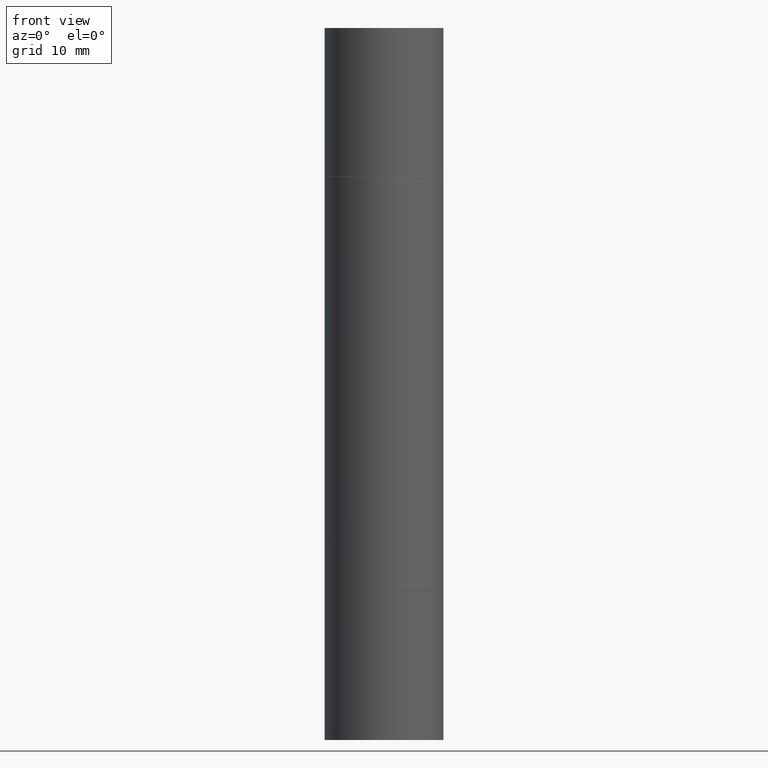
[diagram: clean part render]
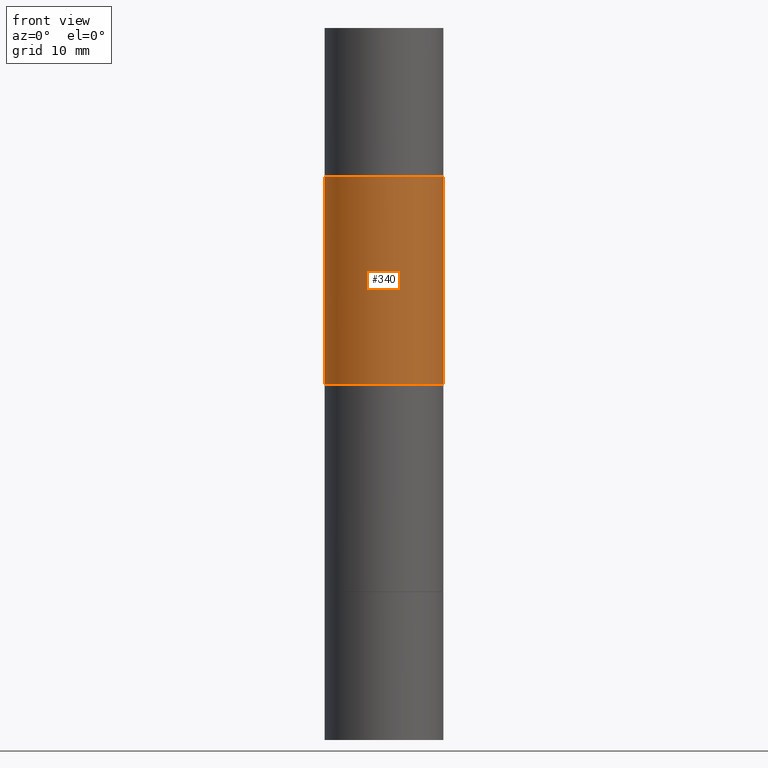
[diagram: same view with one face highlighted and labeled with its STEP entity id]
A machine part, front view. The second image highlights one B-rep face of the part: STEP entity #340.
In plain terms, the highlighted cylindrical surface (partial cylindrical patch) has radius 6.35 mm, axis along (-0, -0, -1).
Its self-contained STEP definition (entity closure, byte-faithful):
#2 = CARTESIAN_POINT ( 'NONE',  ( 0.2499999999999998335, -5.456569567838164864E-15, -1.499999999999999556 ) ) ;
#14 = VERTEX_POINT ( 'NONE', #296 ) ;
#17 = DIRECTION ( 'NONE',  ( -2.445468806185136597E-29, -3.492890411551752677E-15, -1.000000000000000000 ) ) ;
#18 = ORIENTED_EDGE ( 'NONE', *, *, #84, .F. ) ;
#84 = EDGE_CURVE ( 'NONE', #281, #206, #85, .T. ) ;
#85 = LINE ( 'NONE', #243, #480 ) ;
#151 = VERTEX_POINT ( 'NONE', #526 ) ;
#162 = AXIS2_PLACEMENT_3D ( 'NONE', #378, #17, #642 ) ;
#183 = CYLINDRICAL_SURFACE ( 'NONE', #162, 0.2499999999999998335 ) ;
#189 = DIRECTION ( 'NONE',  ( -2.445468806185136877E-29, -3.492890411551753071E-15, -1.000000000000000000 ) ) ;
#198 = EDGE_CURVE ( 'NONE', #206, #14, #554, .T. ) ;
#206 = VERTEX_POINT ( 'NONE', #2 ) ;
#243 = CARTESIAN_POINT ( 'NONE',  ( 0.2499999999999998335, -1.222229829501391012E-14, -2.999999999999999112 ) ) ;
#266 = LINE ( 'NONE', #282, #384 ) ;
#277 = DIRECTION ( 'NONE',  ( -0.000000000000000000, -3.492185875197449130E-15, -1.000000000000000000 ) ) ;
#278 = EDGE_CURVE ( 'NONE', #151, #281, #670, .T. ) ;
#281 = VERTEX_POINT ( 'NONE', #330 ) ;
#282 = CARTESIAN_POINT ( 'NONE',  ( -0.2499999999999998335, -8.761433126149462132E-15, -2.999999999999999112 ) ) ;
#296 = CARTESIAN_POINT ( 'NONE',  ( -0.2499999999999998335, -1.995704398973716874E-15, -1.499999999999999556 ) ) ;
#330 = CARTESIAN_POINT ( 'NONE',  ( 0.2500000000000000000, -3.930176457990049608E-15, -0.6259999999999990017 ) ) ;
#340 = ADVANCED_FACE ( 'NONE', ( #597 ), #183, .T. ) ;
#353 = DIRECTION ( 'NONE',  ( 0.000000000000000000, 1.000000000000000000, -3.278217592397118229E-15 ) ) ;
#363 = EDGE_LOOP ( 'NONE', ( #449, #680, #571, #18 ) ) ;
#378 = CARTESIAN_POINT ( 'NONE',  ( 0.000000000000000000, -1.047655762559234344E-14, -2.999999999999999112 ) ) ;
#383 = AXIS2_PLACEMENT_3D ( 'NONE', #671, #277, #353 ) ;
#384 = VECTOR ( 'NONE', #486, 39.37007874015748143 ) ;
#443 = DIRECTION ( 'NONE',  ( 1.000000000000000000, -6.982962677686266711E-15, 0.000000000000000000 ) ) ;
#449 = ORIENTED_EDGE ( 'NONE', *, *, #278, .F. ) ;
#480 = VECTOR ( 'NONE', #189, 39.37007874015748143 ) ;
#486 = DIRECTION ( 'NONE',  ( -2.445468806185136877E-29, -3.492890411551753071E-15, -1.000000000000000000 ) ) ;
#489 = EDGE_CURVE ( 'NONE', #151, #14, #266, .T. ) ;
#514 = AXIS2_PLACEMENT_3D ( 'NONE', #592, #646, #443 ) ;
#526 = CARTESIAN_POINT ( 'NONE',  ( -0.2500000000000000000, -4.693112891255996450E-16, -0.6259999999999990017 ) ) ;
#554 = CIRCLE ( 'NONE', #383, 0.2499999999999998335 ) ;
#571 = ORIENTED_EDGE ( 'NONE', *, *, #198, .F. ) ;
#592 = CARTESIAN_POINT ( 'NONE',  ( 5.805542945883514935E-29, -2.184435788568482141E-15, -0.6259999999999990017 ) ) ;
#597 = FACE_OUTER_BOUND ( 'NONE', #363, .T. ) ;
#642 = DIRECTION ( 'NONE',  ( 1.000000000000000000, -6.982962677686267499E-15, 0.000000000000000000 ) ) ;
#646 = DIRECTION ( 'NONE',  ( 2.445468806185136597E-29, 3.492890411551752677E-15, 1.000000000000000000 ) ) ;
#670 = CIRCLE ( 'NONE', #514, 0.2500000000000000000 ) ;
#671 = CARTESIAN_POINT ( 'NONE',  ( 3.668203209277703774E-29, -5.237222008264716599E-15, -1.499999999999999556 ) ) ;
#680 = ORIENTED_EDGE ( 'NONE', *, *, #489, .T. ) ;